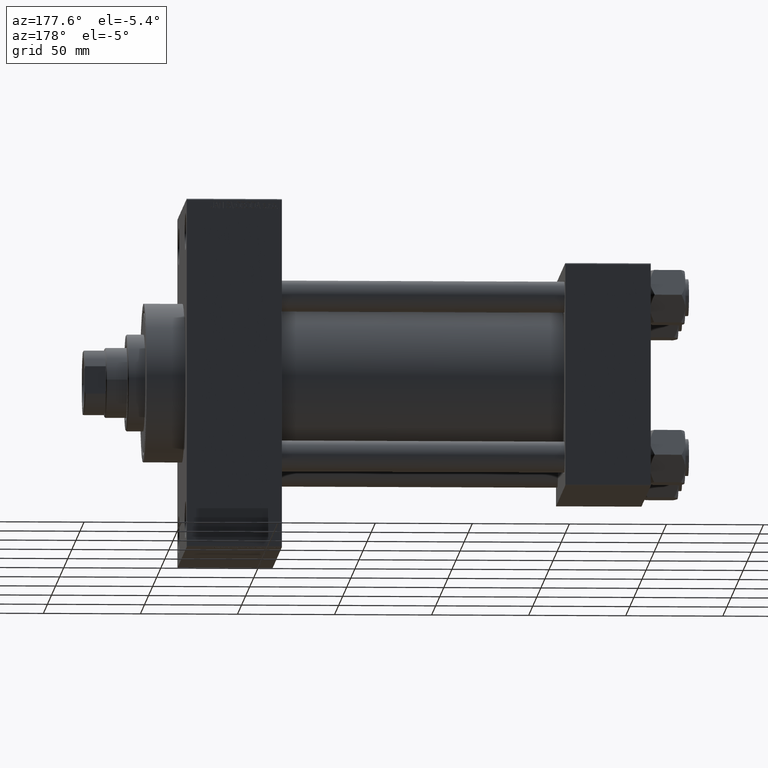
[diagram: clean part render]
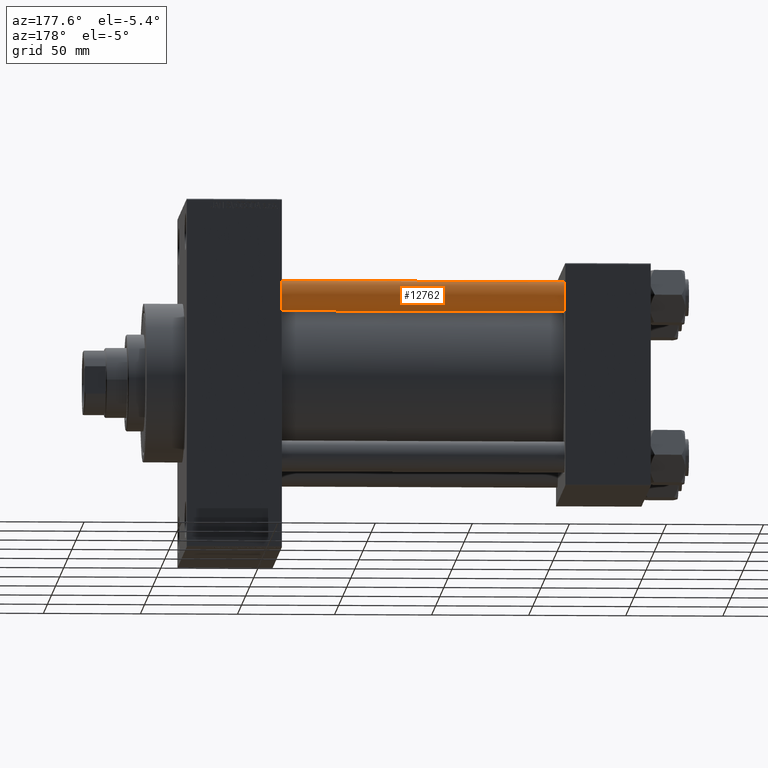
[diagram: same view with one face highlighted and labeled with its STEP entity id]
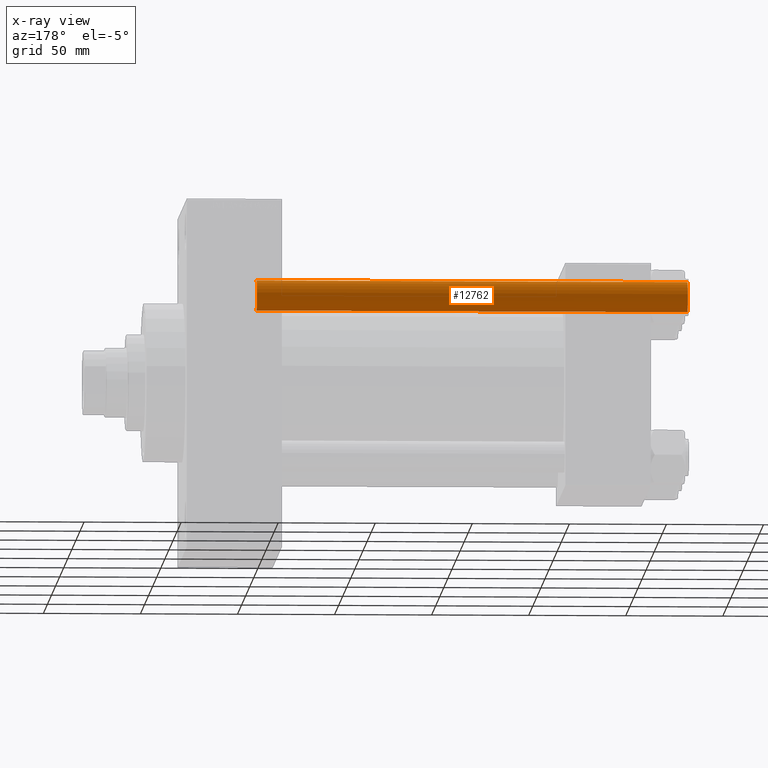
[diagram: x-ray of the same camera — body ghosted, the highlighted face saturated]
A machine part, auxiliary view. The second image highlights one B-rep face of the part: STEP entity #12762.
The next image is the same camera in x-ray: the body ghosted, the highlighted face saturated — about 0% of this face is hidden behind the body in this view.
In plain terms, the highlighted cylindrical surface (edge-blend (fillet) strip) has radius 8 mm, axis along (-1, -0, 0).
Its self-contained STEP definition (entity closure, byte-faithful):
#50 = CIRCLE ( 'NONE', #42558, 8.000000000000000000 ) ;
#89 = DIRECTION ( 'NONE',  ( -0.000000000000000000, -0.000000000000000000, 1.000000000000000000 ) ) ;
#719 = EDGE_CURVE ( 'NONE', #29353, #1328, #27796, .T. ) ;
#1328 = VERTEX_POINT ( 'NONE', #47815 ) ;
#5528 = DIRECTION ( 'NONE',  ( -0.000000000000000000, -0.000000000000000000, -1.000000000000000000 ) ) ;
#7039 = ORIENTED_EDGE ( 'NONE', *, *, #33269, .T. ) ;
#8608 = CARTESIAN_POINT ( 'NONE',  ( -8.000000000000000000, 0.000000000000000000, 222.5000000000001137 ) ) ;
#8609 = AXIS2_PLACEMENT_3D ( 'NONE', #47292, #18222, #43423 ) ;
#12762 = ADVANCED_FACE ( 'NONE', ( #22097 ), #21859, .T. ) ;
#15315 = ORIENTED_EDGE ( 'NONE', *, *, #42133, .F. ) ;
#17967 = LINE ( 'NONE', #32969, #20095 ) ;
#18157 = ORIENTED_EDGE ( 'NONE', *, *, #719, .T. ) ;
#18222 = DIRECTION ( 'NONE',  ( -0.000000000000000000, -0.000000000000000000, -1.000000000000000000 ) ) ;
#19580 = CARTESIAN_POINT ( 'NONE',  ( 8.000000000000000000, 9.797174393178823685E-16, 223.0000000000000000 ) ) ;
#19625 = ORIENTED_EDGE ( 'NONE', *, *, #46728, .T. ) ;
#20095 = VECTOR ( 'NONE', #44124, 1000.000000000000000 ) ;
#20605 = VERTEX_POINT ( 'NONE', #28644 ) ;
#21859 = CYLINDRICAL_SURFACE ( 'NONE', #8609, 8.000000000000000000 ) ;
#22097 = FACE_OUTER_BOUND ( 'NONE', #33764, .T. ) ;
#24750 = DIRECTION ( 'NONE',  ( 1.000000000000000000, 0.000000000000000000, 0.000000000000000000 ) ) ;
#27093 = CARTESIAN_POINT ( 'NONE',  ( 8.000000000000000000, 9.797174393178823685E-16, 222.5000000000001137 ) ) ;
#27796 = LINE ( 'NONE', #19580, #46185 ) ;
#28371 = CARTESIAN_POINT ( 'NONE',  ( 0.000000000000000000, 0.000000000000000000, 222.5000000000001137 ) ) ;
#28644 = CARTESIAN_POINT ( 'NONE',  ( -8.000000000000000000, 0.000000000000000000, 0.5000000000001669775 ) ) ;
#29353 = VERTEX_POINT ( 'NONE', #27093 ) ;
#29612 = DIRECTION ( 'NONE',  ( 1.000000000000000000, 0.000000000000000000, 0.000000000000000000 ) ) ;
#30504 = VERTEX_POINT ( 'NONE', #8608 ) ;
#31393 = AXIS2_PLACEMENT_3D ( 'NONE', #33231, #89, #29612 ) ;
#32969 = CARTESIAN_POINT ( 'NONE',  ( -8.000000000000000000, 0.000000000000000000, 223.0000000000000000 ) ) ;
#33231 = CARTESIAN_POINT ( 'NONE',  ( 0.000000000000000000, 0.000000000000000000, 0.5000000000001669775 ) ) ;
#33269 = EDGE_CURVE ( 'NONE', #1328, #20605, #41442, .T. ) ;
#33764 = EDGE_LOOP ( 'NONE', ( #19625, #18157, #7039, #15315 ) ) ;
#41442 = CIRCLE ( 'NONE', #31393, 8.000000000000000000 ) ;
#42133 = EDGE_CURVE ( 'NONE', #30504, #20605, #17967, .T. ) ;
#42558 = AXIS2_PLACEMENT_3D ( 'NONE', #28371, #43154, #24750 ) ;
#43154 = DIRECTION ( 'NONE',  ( 0.000000000000000000, 0.000000000000000000, -1.000000000000000000 ) ) ;
#43423 = DIRECTION ( 'NONE',  ( -1.000000000000000000, 0.000000000000000000, 0.000000000000000000 ) ) ;
#44124 = DIRECTION ( 'NONE',  ( -0.000000000000000000, -0.000000000000000000, -1.000000000000000000 ) ) ;
#46185 = VECTOR ( 'NONE', #5528, 1000.000000000000000 ) ;
#46728 = EDGE_CURVE ( 'NONE', #30504, #29353, #50, .T. ) ;
#47292 = CARTESIAN_POINT ( 'NONE',  ( 0.000000000000000000, 0.000000000000000000, 223.0000000000000000 ) ) ;
#47815 = CARTESIAN_POINT ( 'NONE',  ( 8.000000000000000000, 9.797174393178823685E-16, 0.5000000000001669775 ) ) ;